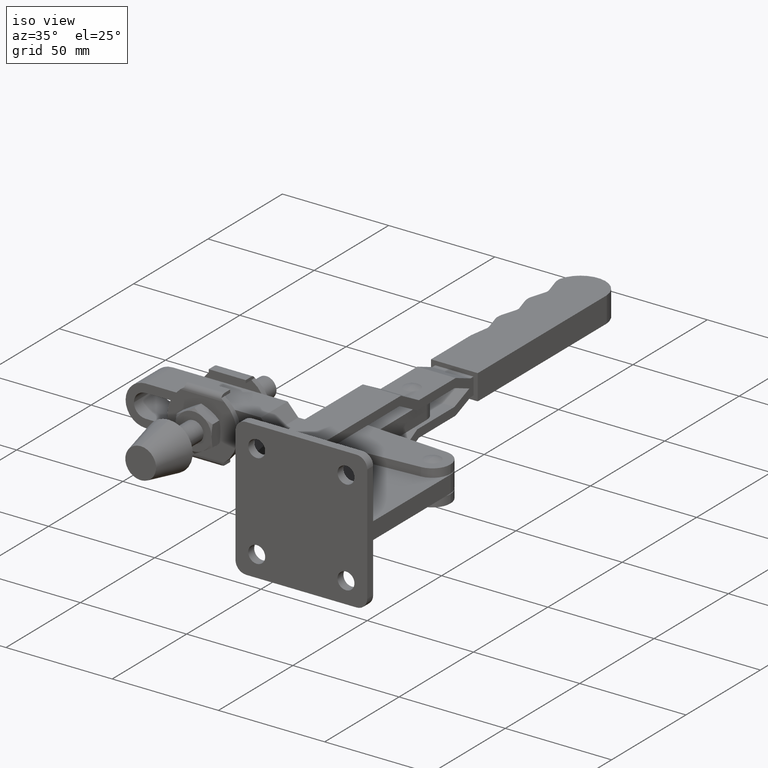
[diagram: clean part render]
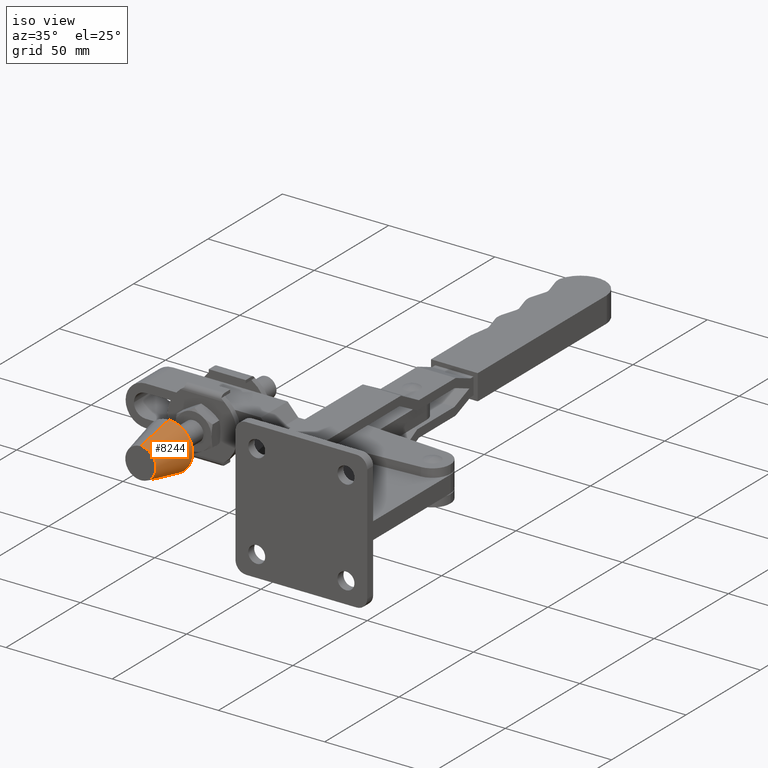
[diagram: same view with one face highlighted and labeled with its STEP entity id]
A machine part, iso view. The second image highlights one B-rep face of the part: STEP entity #8244.
In plain terms, the highlighted conical surface has half-angle 11.744 deg.
Its self-contained STEP definition (entity closure, byte-faithful):
#426 = DIRECTION ( 'NONE',  ( 1.859161535510647500E-005, 0.9790660731438017800, 0.2035426836639614700 ) ) ;
#452 = DIRECTION ( 'NONE',  ( -1.898913246177192200E-005, -0.9999999998197065500, 2.326450629559498900E-021 ) ) ;
#581 = AXIS2_PLACEMENT_3D ( 'NONE', #1166, #9836, #9058 ) ;
#630 = VERTEX_POINT ( 'NONE', #9098 ) ;
#1166 = CARTESIAN_POINT ( 'NONE',  ( -108.7179125955523100, 3.002919842043305600, 1.112952206661046300E-014 ) ) ;
#1665 = EDGE_CURVE ( 'NONE', #2317, #5377, #8600, .T. ) ;
#1851 = EDGE_CURVE ( 'NONE', #5377, #630, #9235, .T. ) ;
#2317 = VERTEX_POINT ( 'NONE', #3478 ) ;
#2731 = CONICAL_SURFACE ( 'NONE', #581, 7.250000000000000000, 0.2049750003548368200 ) ;
#3267 = CARTESIAN_POINT ( 'NONE',  ( -108.7179125955523100, 3.002919842043305600, -7.249999999999989300 ) ) ;
#3323 = AXIS2_PLACEMENT_3D ( 'NONE', #4448, #9999, #5251 ) ;
#3478 = CARTESIAN_POINT ( 'NONE',  ( -108.7179125955523100, 3.002919842043305600, -7.249999999999989300 ) ) ;
#3505 = VECTOR ( 'NONE', #8862, 1000.000000000000100 ) ;
#4448 = CARTESIAN_POINT ( 'NONE',  ( -108.7175518020355300, 22.00291983861772800, 1.112947786404850200E-014 ) ) ;
#4489 = VERTEX_POINT ( 'NONE', #9984 ) ;
#4840 = EDGE_CURVE ( 'NONE', #2317, #4489, #9816, .T. ) ;
#5243 = EDGE_LOOP ( 'NONE', ( #8055, #9596, #6308, #9440 ) ) ;
#5251 = DIRECTION ( 'NONE',  ( 0.0000000000000000000, 0.0000000000000000000, -1.000000000000000000 ) ) ;
#5377 = VERTEX_POINT ( 'NONE', #6512 ) ;
#5531 = CARTESIAN_POINT ( 'NONE',  ( -108.7179125955523100, 3.002919842043305600, 7.250000000000011500 ) ) ;
#6287 = DIRECTION ( 'NONE',  ( 0.0000000000000000000, 0.0000000000000000000, -1.000000000000000000 ) ) ;
#6308 = ORIENTED_EDGE ( 'NONE', *, *, #8724, .T. ) ;
#6512 = CARTESIAN_POINT ( 'NONE',  ( -108.7179125955523100, 3.002919842043305600, 7.250000000000011500 ) ) ;
#7147 = VECTOR ( 'NONE', #426, 1000.000000000000100 ) ;
#7899 = CIRCLE ( 'NONE', #3323, 11.19999999999999900 ) ;
#8055 = ORIENTED_EDGE ( 'NONE', *, *, #1665, .F. ) ;
#8102 = CARTESIAN_POINT ( 'NONE',  ( -108.7179125955523100, 3.002919842043305600, 1.112952206661046300E-014 ) ) ;
#8244 = ADVANCED_FACE ( 'NONE', ( #9750 ), #2731, .T. ) ;
#8473 = AXIS2_PLACEMENT_3D ( 'NONE', #8102, #452, #6287 ) ;
#8600 = CIRCLE ( 'NONE', #8473, 7.250000000000000000 ) ;
#8724 = EDGE_CURVE ( 'NONE', #4489, #630, #7899, .T. ) ;
#8862 = DIRECTION ( 'NONE',  ( 1.859161535513140500E-005, 0.9790660731438017800, -0.2035426836639614700 ) ) ;
#9058 = DIRECTION ( 'NONE',  ( 0.0000000000000000000, 0.0000000000000000000, 1.000000000000000000 ) ) ;
#9098 = CARTESIAN_POINT ( 'NONE',  ( -108.7175518020355300, 22.00291983861772800, 11.20000000000001000 ) ) ;
#9235 = LINE ( 'NONE', #5531, #7147 ) ;
#9440 = ORIENTED_EDGE ( 'NONE', *, *, #1851, .F. ) ;
#9596 = ORIENTED_EDGE ( 'NONE', *, *, #4840, .T. ) ;
#9750 = FACE_OUTER_BOUND ( 'NONE', #5243, .T. ) ;
#9816 = LINE ( 'NONE', #3267, #3505 ) ;
#9836 = DIRECTION ( 'NONE',  ( 1.898913246177192200E-005, 0.9999999998197065500, -2.326450629559498900E-021 ) ) ;
#9984 = CARTESIAN_POINT ( 'NONE',  ( -108.7175518020355300, 22.00291983861772800, -11.19999999999998900 ) ) ;
#9999 = DIRECTION ( 'NONE',  ( -1.898913246177192200E-005, -0.9999999998197065500, 2.326450629559498900E-021 ) ) ;